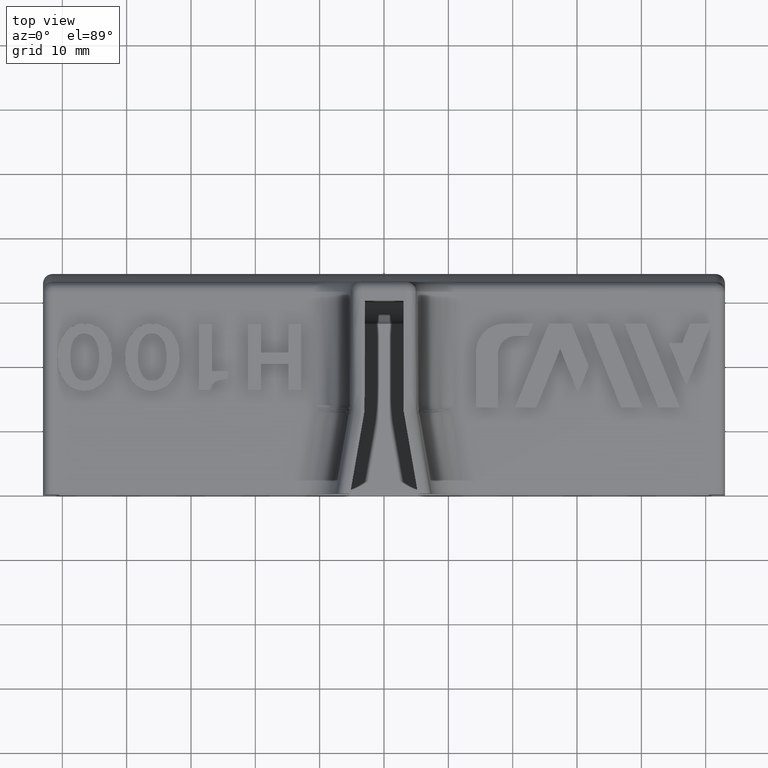
[diagram: clean part render]
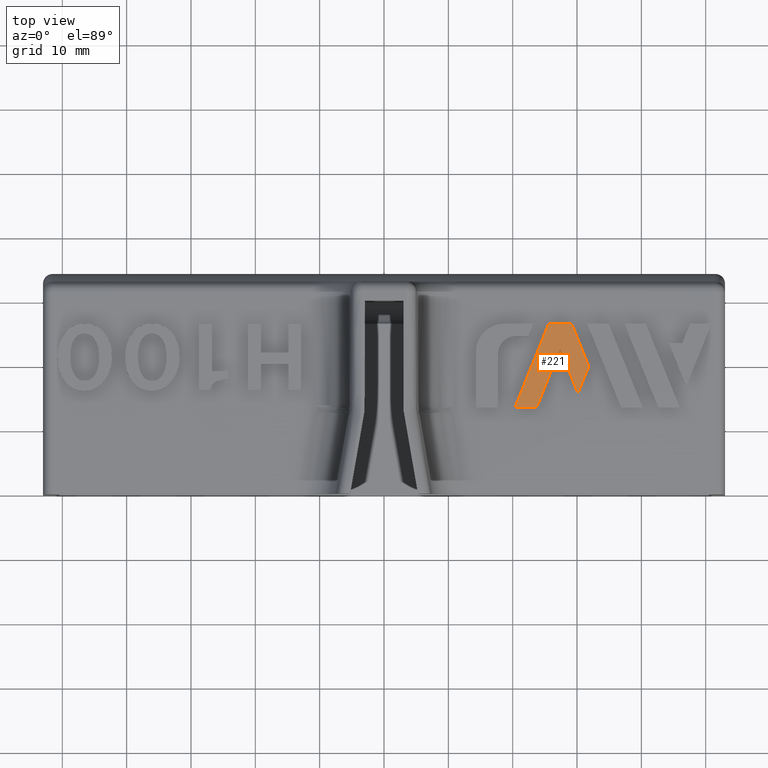
[diagram: same view with one face highlighted and labeled with its STEP entity id]
A machine part, top view. The second image highlights one B-rep face of the part: STEP entity #221.
In plain terms, the highlighted planar face has unit normal (-0, 0, -1).
Its self-contained STEP definition (entity closure, byte-faithful):
#221=ADVANCED_FACE('',(#466),#467,.F.);
#466=FACE_OUTER_BOUND('',#1571,.T.);
#467=PLANE('',#1572);
#1571=EDGE_LOOP('',(#2721,#2722,#2723,#2724,#2725,#2726,#2727));
#1572=AXIS2_PLACEMENT_3D('',#2728,#2729,#2730);
#2721=ORIENTED_EDGE('',*,*,#3120,.F.);
#2722=ORIENTED_EDGE('',*,*,#3128,.F.);
#2723=ORIENTED_EDGE('',*,*,#3125,.F.);
#2724=ORIENTED_EDGE('',*,*,#3113,.F.);
#2725=ORIENTED_EDGE('',*,*,#3110,.F.);
#2726=ORIENTED_EDGE('',*,*,#3117,.F.);
#2727=ORIENTED_EDGE('',*,*,#3123,.F.);
#2728=CARTESIAN_POINT('',(14.2878206641581,13.4986448545981,6.5005));
#2729=DIRECTION('',(-1.68724714822356E-31,1.71410341203709E-16,-1.0));
#2730=DIRECTION('',(-1.0,3.05640636956162E-16,2.21114680688731E-31));
#3110=EDGE_CURVE('',#3555,#3557,#3558,.T.);
#3113=EDGE_CURVE('',#3557,#3562,#3563,.T.);
#3117=EDGE_CURVE('',#3567,#3555,#3569,.T.);
#3120=EDGE_CURVE('',#3573,#3575,#3576,.T.);
#3123=EDGE_CURVE('',#3575,#3567,#3579,.T.);
#3125=EDGE_CURVE('',#3562,#3582,#3583,.T.);
#3128=EDGE_CURVE('',#3582,#3573,#3586,.T.);
#3555=VERTEX_POINT('',#4857);
#3557=VERTEX_POINT('',#4860);
#3558=LINE('',#4861,#4862);
#3562=VERTEX_POINT('',#4868);
#3563=LINE('',#4869,#4870);
#3567=VERTEX_POINT('',#4876);
#3569=LINE('',#4879,#4880);
#3573=VERTEX_POINT('',#4885);
#3575=VERTEX_POINT('',#4888);
#3576=LINE('',#4889,#4890);
#3579=LINE('',#4895,#4896);
#3582=VERTEX_POINT('',#4900);
#3583=LINE('',#4901,#4902);
#3586=LINE('',#4907,#4908);
#4857=CARTESIAN_POINT('',(25.5997940828384,26.4941301454018,6.5005));
#4860=CARTESIAN_POINT('',(29.1496864651929,26.4941301454018,6.5005));
#4861=CARTESIAN_POINT('',(25.5997940828383,26.4941301454018,6.5005));
#4862=VECTOR('',#5253,1000.0);
#4868=CARTESIAN_POINT('',(31.8251445333865,19.8732953236249,6.5005));
#4869=CARTESIAN_POINT('',(29.1496864651929,26.4941301454018,6.5005));
#4870=VECTOR('',#5256,1000.0);
#4876=CARTESIAN_POINT('',(20.3495403789217,13.4986448545981,6.5005));
#4879=CARTESIAN_POINT('',(20.3495403789217,13.4986448545981,6.5005));
#4880=VECTOR('',#5260,1000.0);
#4885=CARTESIAN_POINT('',(27.3751093985523,22.5747223886335,6.5005));
#4888=CARTESIAN_POINT('',(23.7077051342887,13.4986448545981,6.5005));
#4889=CARTESIAN_POINT('',(27.3751093985523,22.5747223886335,6.5005));
#4890=VECTOR('',#5263,1000.0);
#4895=CARTESIAN_POINT('',(23.7077051342887,13.4986448545981,6.5005));
#4896=VECTOR('',#5266,1000.0);
#4900=CARTESIAN_POINT('',(30.1460621557029,15.7166924822346,6.5005));
#4901=CARTESIAN_POINT('',(31.8251445333865,19.8732953236249,6.5005));
#4902=VECTOR('',#5268,1000.0);
#4907=CARTESIAN_POINT('',(30.1460621557029,15.7166924822346,6.5005));
#4908=VECTOR('',#5271,1000.0);
#5253=DIRECTION('',(1.0,-2.44925315296973E-16,1.49973501704297E-32));
#5256=DIRECTION('',(0.37466283241142,-0.927161130553612,-1.58925005739011E-16));
#5260=DIRECTION('',(0.374590451773198,0.92719037605033,1.58930018719583E-16));
#5263=DIRECTION('',(-0.374644435760503,-0.927168564368796,-1.58926279971809E-16));
#5266=DIRECTION('',(-1.0,2.44925315296973E-16,1.82217876134823E-31));
#5268=DIRECTION('',(-0.374550179126525,-0.927206645422846,-1.58932807458277E-16));
#5271=DIRECTION('',(-0.374621565025663,0.927177805503197,1.5892786399781E-16));